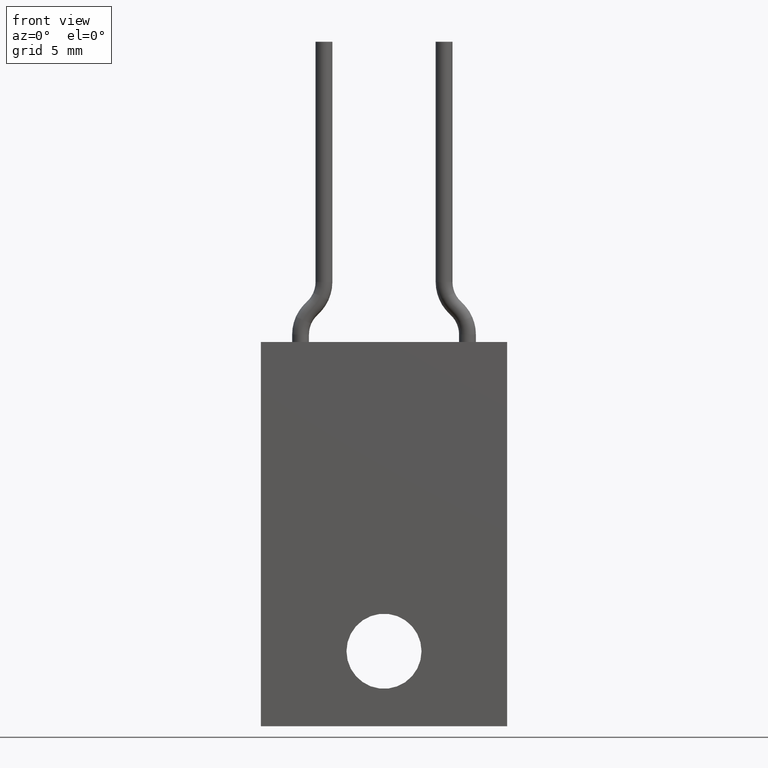
[diagram: clean part render]
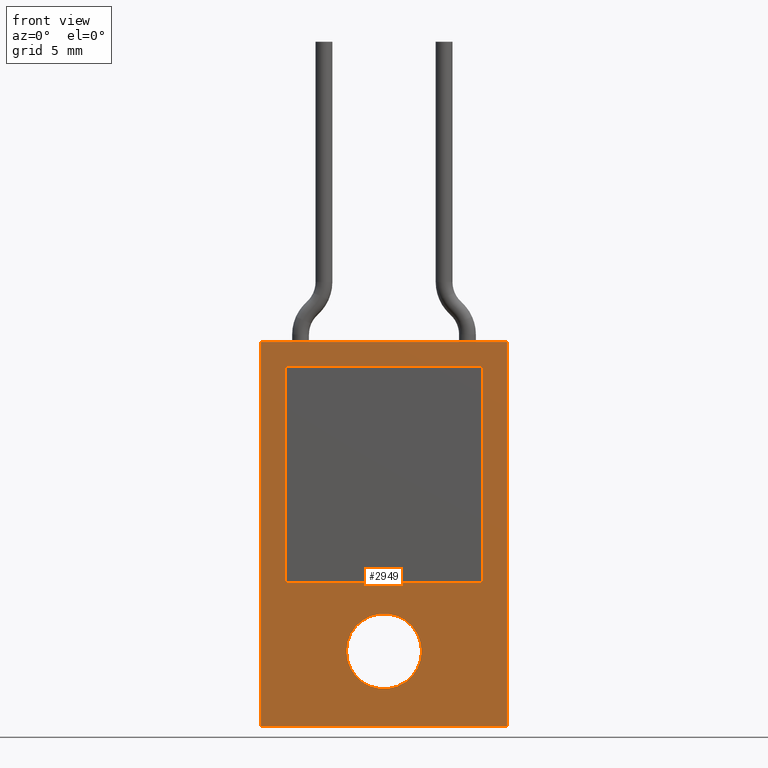
[diagram: same view with one face highlighted and labeled with its STEP entity id]
A machine part, front view. The second image highlights one B-rep face of the part: STEP entity #2949.
In plain terms, the highlighted planar face has unit normal (0, -1, 0).
Its self-contained STEP definition (entity closure, byte-faithful):
#2587=DIRECTION('',(0.E0,-1.E0,0.E0));
#2588=VECTOR('',#2587,6.4E-1);
#2589=CARTESIAN_POINT('',(2.05E-1,4.2E-1,0.E0));
#2590=LINE('',#2589,#2588);
#2658=DIRECTION('',(1.E0,0.E0,0.E0));
#2659=VECTOR('',#2658,4.1E-1);
#2660=CARTESIAN_POINT('',(-2.05E-1,4.2E-1,0.E0));
#2661=LINE('',#2660,#2659);
#2666=CARTESIAN_POINT('',(0.E0,2.95E-1,0.E0));
#2667=DIRECTION('',(0.E0,0.E0,-1.E0));
#2668=DIRECTION('',(-1.E0,0.E0,0.E0));
#2669=AXIS2_PLACEMENT_3D('',#2666,#2667,#2668);
#2671=CARTESIAN_POINT('',(0.E0,2.95E-1,0.E0));
#2672=DIRECTION('',(0.E0,0.E0,-1.E0));
#2673=DIRECTION('',(1.E0,0.E0,0.E0));
#2674=AXIS2_PLACEMENT_3D('',#2671,#2672,#2673);
#2676=DIRECTION('',(-1.E0,0.E0,0.E0));
#2677=VECTOR('',#2676,4.1E-1);
#2678=CARTESIAN_POINT('',(2.05E-1,-2.2E-1,0.E0));
#2679=LINE('',#2678,#2677);
#2684=DIRECTION('',(0.E0,1.E0,0.E0));
#2685=VECTOR('',#2684,6.4E-1);
#2686=CARTESIAN_POINT('',(-2.05E-1,-2.2E-1,0.E0));
#2687=LINE('',#2686,#2685);
#2717=DIRECTION('',(0.E0,-1.E0,0.E0));
#2718=VECTOR('',#2717,3.6E-1);
#2719=CARTESIAN_POINT('',(-1.65E-1,1.8E-1,0.E0));
#2720=LINE('',#2719,#2718);
#2741=DIRECTION('',(-1.E0,0.E0,0.E0));
#2742=VECTOR('',#2741,3.3E-1);
#2743=CARTESIAN_POINT('',(1.65E-1,1.8E-1,0.E0));
#2744=LINE('',#2743,#2742);
#2749=DIRECTION('',(0.E0,1.E0,0.E0));
#2750=VECTOR('',#2749,3.6E-1);
#2751=CARTESIAN_POINT('',(1.65E-1,-1.8E-1,0.E0));
#2752=LINE('',#2751,#2750);
#2757=DIRECTION('',(1.E0,0.E0,0.E0));
#2758=VECTOR('',#2757,3.3E-1);
#2759=CARTESIAN_POINT('',(-1.65E-1,-1.8E-1,0.E0));
#2760=LINE('',#2759,#2758);
#2787=CARTESIAN_POINT('',(-2.05E-1,-2.2E-1,0.E0));
#2788=VERTEX_POINT('',#2787);
#2789=CARTESIAN_POINT('',(-2.05E-1,4.2E-1,0.E0));
#2790=VERTEX_POINT('',#2789);
#2805=CARTESIAN_POINT('',(1.65E-1,-1.8E-1,0.E0));
#2806=VERTEX_POINT('',#2805);
#2807=CARTESIAN_POINT('',(1.65E-1,1.8E-1,0.E0));
#2808=VERTEX_POINT('',#2807);
#2809=CARTESIAN_POINT('',(-1.65E-1,-1.8E-1,0.E0));
#2810=VERTEX_POINT('',#2809);
#2811=CARTESIAN_POINT('',(-1.65E-1,1.8E-1,0.E0));
#2812=VERTEX_POINT('',#2811);
#2813=CARTESIAN_POINT('',(2.05E-1,4.2E-1,0.E0));
#2814=VERTEX_POINT('',#2813);
#2815=CARTESIAN_POINT('',(2.05E-1,-2.2E-1,0.E0));
#2816=VERTEX_POINT('',#2815);
#2818=CARTESIAN_POINT('',(6.25E-2,2.95E-1,0.E0));
#2820=VERTEX_POINT('',#2818);
#2822=CARTESIAN_POINT('',(-6.25E-2,2.95E-1,0.E0));
#2824=VERTEX_POINT('',#2822);
#2920=CARTESIAN_POINT('',(0.E0,1.E-1,0.E0));
#2921=DIRECTION('',(0.E0,0.E0,1.E0));
#2922=DIRECTION('',(1.E0,0.E0,0.E0));
#2923=AXIS2_PLACEMENT_3D('',#2920,#2921,#2922);
#2924=PLANE('',#2923);
#2926=ORIENTED_EDGE('',*,*,#2925,.T.);
#2928=ORIENTED_EDGE('',*,*,#2927,.T.);
#2929=ORIENTED_EDGE('',*,*,#2913,.T.);
#2930=ORIENTED_EDGE('',*,*,#2858,.T.);
#2931=EDGE_LOOP('',(#2926,#2928,#2929,#2930));
#2932=FACE_OUTER_BOUND('',#2931,.F.);
#2934=ORIENTED_EDGE('',*,*,#2933,.F.);
#2936=ORIENTED_EDGE('',*,*,#2935,.F.);
#2937=EDGE_LOOP('',(#2934,#2936));
#2938=FACE_BOUND('',#2937,.F.);
#2940=ORIENTED_EDGE('',*,*,#2939,.T.);
#2942=ORIENTED_EDGE('',*,*,#2941,.T.);
#2944=ORIENTED_EDGE('',*,*,#2943,.T.);
#2946=ORIENTED_EDGE('',*,*,#2945,.T.);
#2947=EDGE_LOOP('',(#2940,#2942,#2944,#2946));
#2948=FACE_BOUND('',#2947,.F.);
#2949=ADVANCED_FACE('',(#2932,#2938,#2948),#2924,.T.);
#2670=CIRCLE('',#2669,6.25E-2);
#2675=CIRCLE('',#2674,6.25E-2);
#2858=EDGE_CURVE('',#2814,#2816,#2590,.T.);
#2913=EDGE_CURVE('',#2790,#2814,#2661,.T.);
#2925=EDGE_CURVE('',#2816,#2788,#2679,.T.);
#2927=EDGE_CURVE('',#2788,#2790,#2687,.T.);
#2933=EDGE_CURVE('',#2824,#2820,#2670,.T.);
#2935=EDGE_CURVE('',#2820,#2824,#2675,.T.);
#2939=EDGE_CURVE('',#2812,#2810,#2720,.T.);
#2941=EDGE_CURVE('',#2810,#2806,#2760,.T.);
#2943=EDGE_CURVE('',#2806,#2808,#2752,.T.);
#2945=EDGE_CURVE('',#2808,#2812,#2744,.T.);